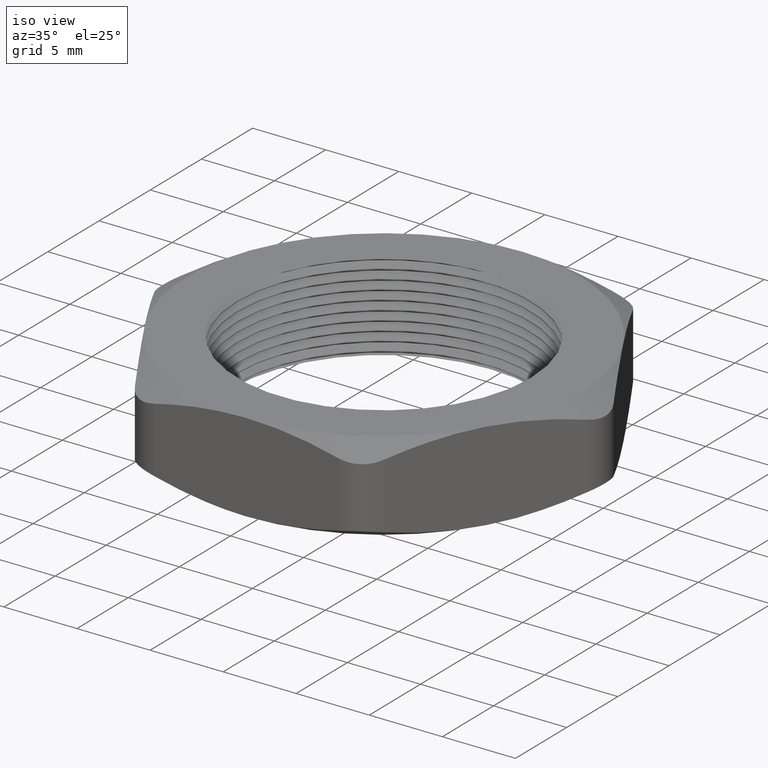
[diagram: clean part render]
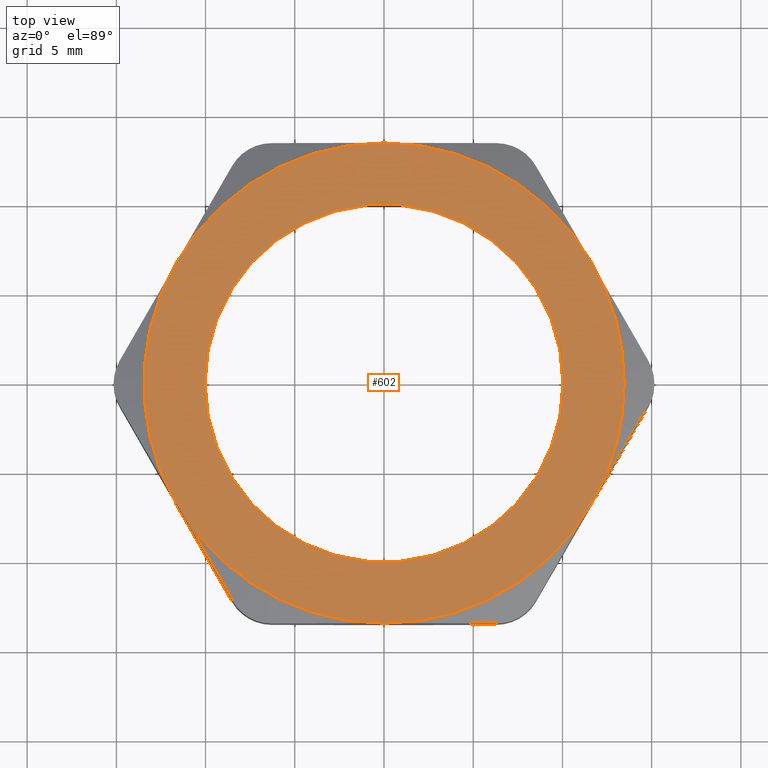
[diagram: tour spotlight — one face highlighted and labeled with its STEP entity id]
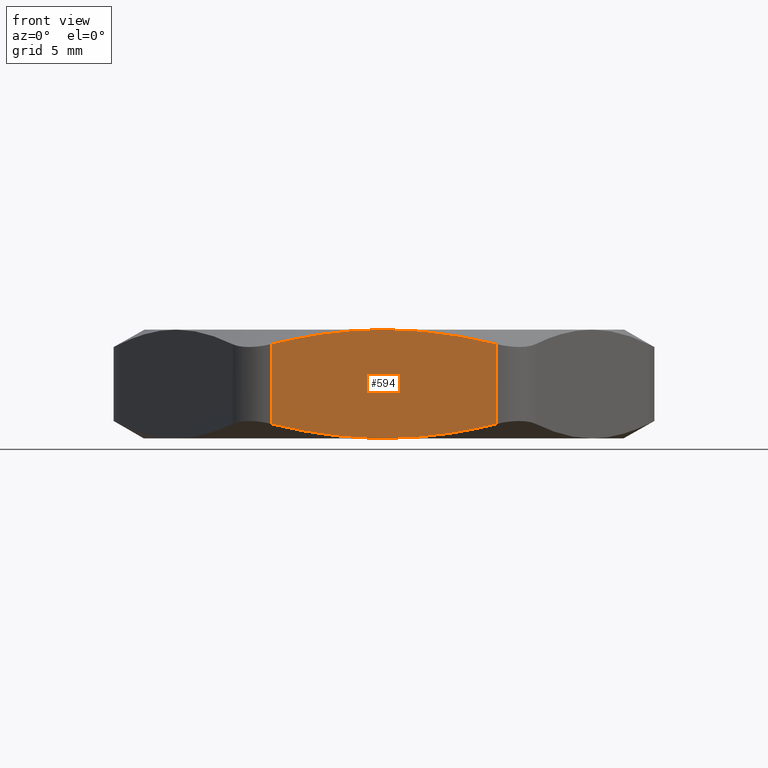
[diagram: tour spotlight — one face highlighted and labeled with its STEP entity id]
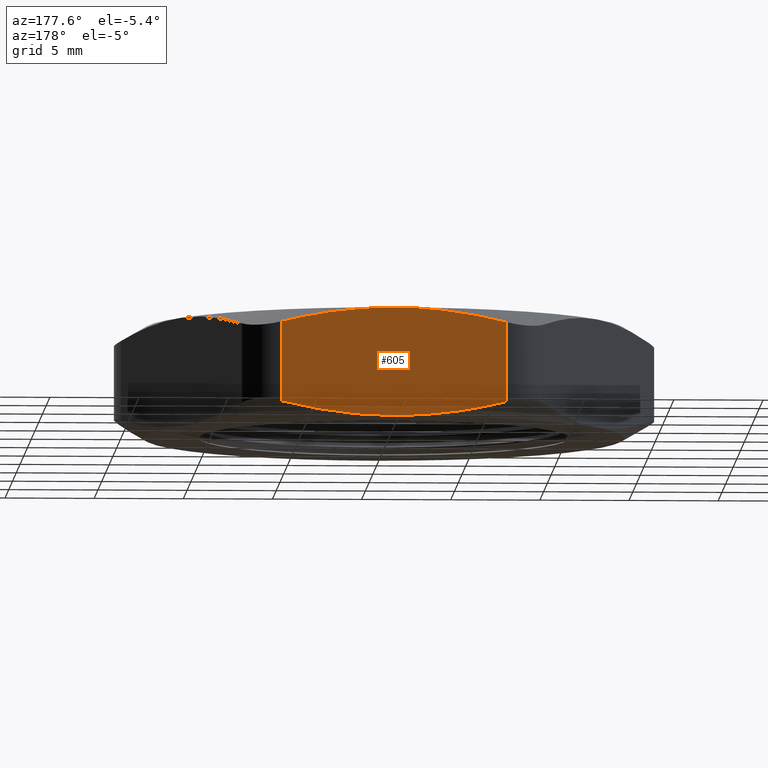
[diagram: tour spotlight — one face highlighted and labeled with its STEP entity id]
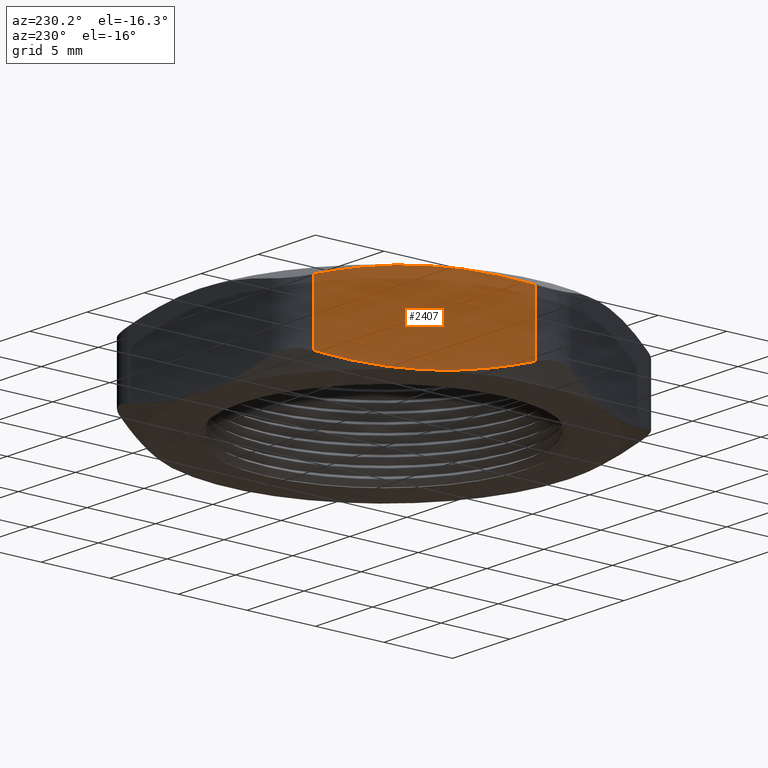
[diagram: tour spotlight — one face highlighted and labeled with its STEP entity id]
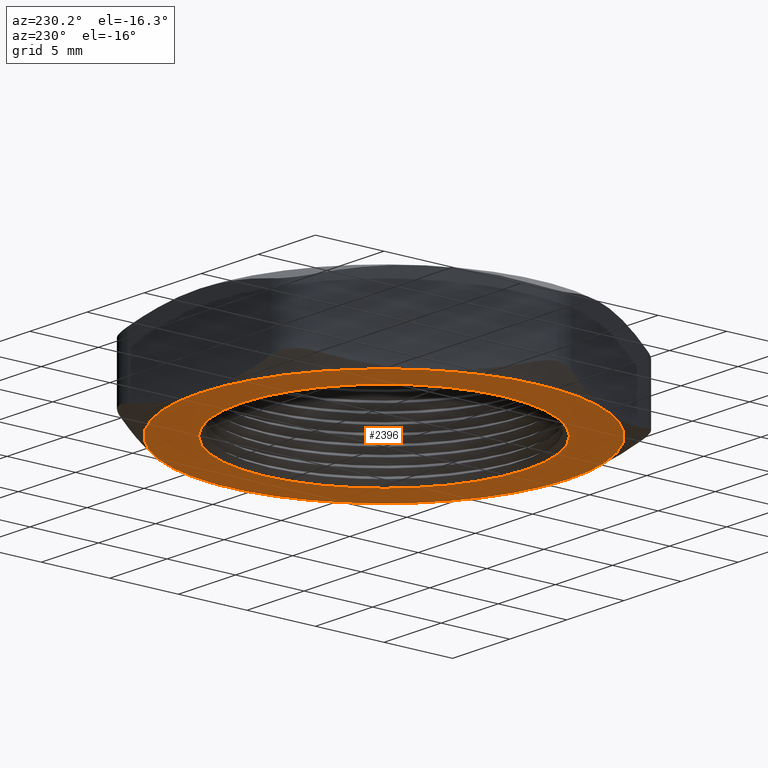
[diagram: tour spotlight — one face highlighted and labeled with its STEP entity id]
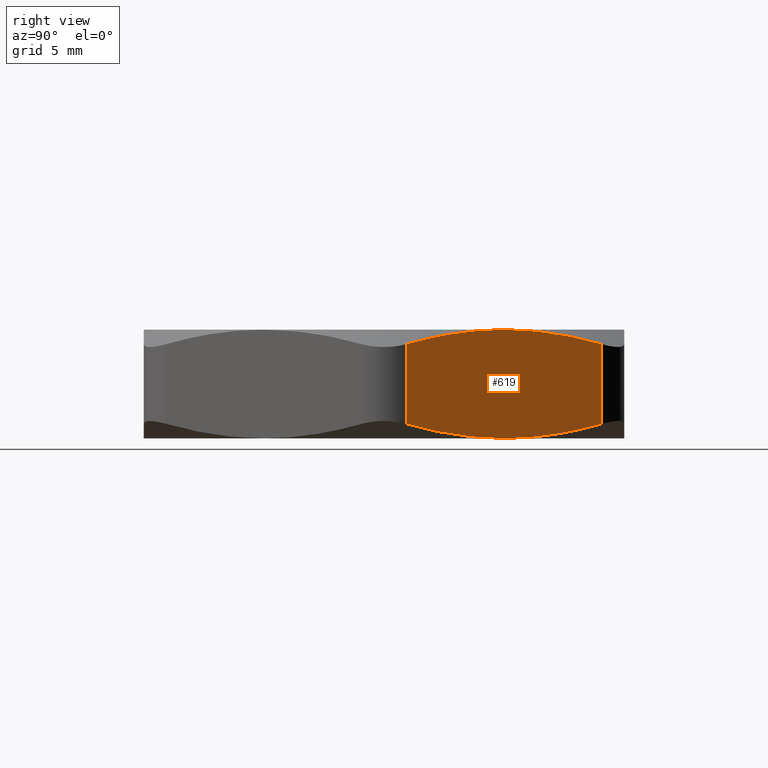
[diagram: tour spotlight — one face highlighted and labeled with its STEP entity id]
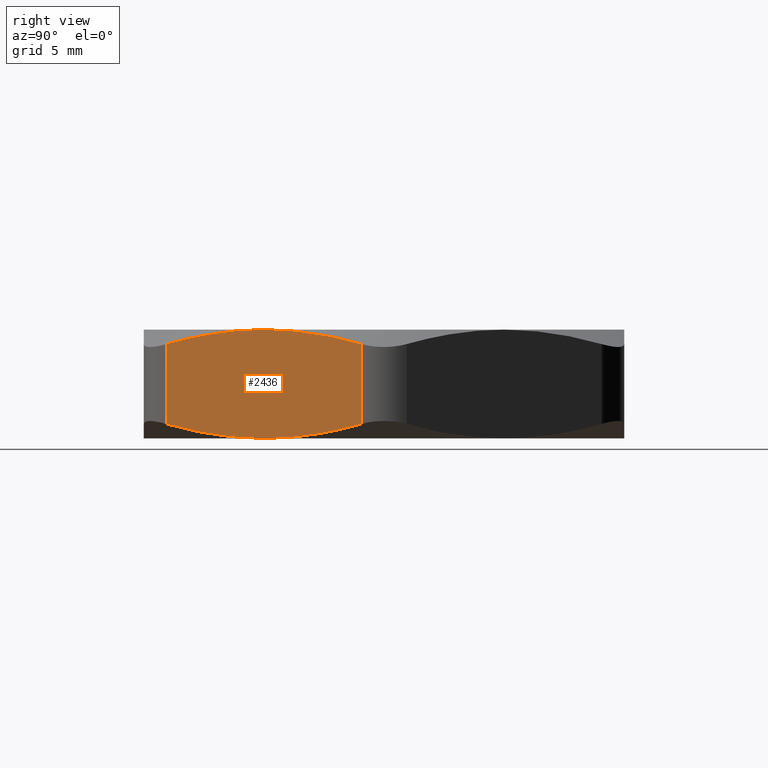
[diagram: tour spotlight — one face highlighted and labeled with its STEP entity id]
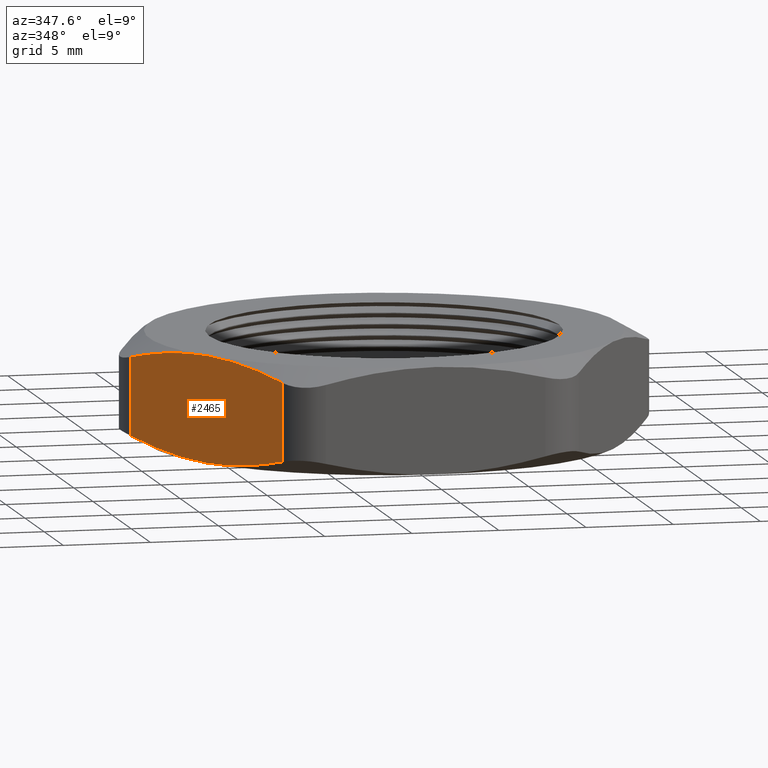
[diagram: tour spotlight — one face highlighted and labeled with its STEP entity id]
A machine part: a face-by-face anatomy tour. The part has 87 B-rep faces; the first image is the clean iso view, then the 8 largest visible faces are spotlighted one at a time (largest first), each with its STEP entity span.

Face 1 — top view, entity #602. In plain terms, the highlighted planar face has unit normal (0, 0, 1).
Definition (entity closure, byte-faithful):
#66 = DIRECTION ( 'NONE',  ( 1.000000000000000000, 0.0000000000000000000, 0.0000000000000000000 ) ) ;
#67 = DIRECTION ( 'NONE',  ( 0.0000000000000000000, 0.0000000000000000000, 1.000000000000000000 ) ) ;
#68 = CARTESIAN_POINT ( 'NONE',  ( 0.0000000000000000000, 0.0000000000000000000, 0.2399999999999999900 ) ) ;
#69 = AXIS2_PLACEMENT_3D ( 'NONE', #68, #67, #66 ) ;
#70 = CIRCLE ( 'NONE', #69, 0.5300000000000001400 ) ;
#126 = CARTESIAN_POINT ( 'NONE',  ( 0.4589934640057527500, 0.2650000000000001200, 0.2399999999999999900 ) ) ;
#127 = CARTESIAN_POINT ( 'NONE',  ( 0.5300000000000001400, 0.0000000000000000000, 0.2399999999999999900 ) ) ;
#307 = CARTESIAN_POINT ( 'NONE',  ( -0.4589934640057524700, 0.2650000000000001200, 0.2399999999999999900 ) ) ;
#459 = CARTESIAN_POINT ( 'NONE',  ( 0.4589934640057524700, -0.2649999999999999600, 0.2399999999999999900 ) ) ;
#598 = VERTEX_POINT ( 'NONE', #627 ) ;
#602 = ADVANCED_FACE ( 'NONE', ( #630, #629 ), #626, .T. ) ;
#626 = PLANE ( 'NONE',  #696 ) ;
#627 = CARTESIAN_POINT ( 'NONE',  ( -0.4589934640057524700, -0.2649999999999998500, 0.2399999999999999900 ) ) ;
#629 = FACE_OUTER_BOUND ( 'NONE', #1886, .T. ) ;
#630 = FACE_BOUND ( 'NONE', #666, .T. ) ;
#665 = ORIENTED_EDGE ( 'NONE', *, *, #2086, .F. ) ;
#666 = EDGE_LOOP ( 'NONE', ( #665, #1887 ) ) ;
#693 = DIRECTION ( 'NONE',  ( 1.000000000000000000, 0.0000000000000000000, 0.0000000000000000000 ) ) ;
#694 = DIRECTION ( 'NONE',  ( 0.0000000000000000000, 0.0000000000000000000, 1.000000000000000000 ) ) ;
#695 = CARTESIAN_POINT ( 'NONE',  ( -0.6119912853410033300, 1.794447934970291600E-016, 0.2399999999999999900 ) ) ;
#696 = AXIS2_PLACEMENT_3D ( 'NONE', #695, #694, #693 ) ;
#805 = CARTESIAN_POINT ( 'NONE',  ( 5.914624404477003900E-017, -0.5299999999999999200, 0.2399999999999999900 ) ) ;
#842 = DIRECTION ( 'NONE',  ( 1.000000000000000000, 0.0000000000000000000, 0.0000000000000000000 ) ) ;
#843 = DIRECTION ( 'NONE',  ( 0.0000000000000000000, 0.0000000000000000000, 1.000000000000000000 ) ) ;
#844 = CARTESIAN_POINT ( 'NONE',  ( 0.0000000000000000000, 0.0000000000000000000, 0.2399999999999999900 ) ) ;
#845 = AXIS2_PLACEMENT_3D ( 'NONE', #844, #843, #842 ) ;
#847 = CIRCLE ( 'NONE', #845, 0.5300000000000001400 ) ;
#868 = CIRCLE ( 'NONE', #900, 0.5300000000000001400 ) ;
#882 = DIRECTION ( 'NONE',  ( 1.000000000000000000, 0.0000000000000000000, 0.0000000000000000000 ) ) ;
#883 = DIRECTION ( 'NONE',  ( 0.0000000000000000000, 0.0000000000000000000, 1.000000000000000000 ) ) ;
#884 = CARTESIAN_POINT ( 'NONE',  ( 0.0000000000000000000, 0.0000000000000000000, 0.2399999999999999900 ) ) ;
#885 = AXIS2_PLACEMENT_3D ( 'NONE', #884, #883, #882 ) ;
#886 = CIRCLE ( 'NONE', #885, 0.5300000000000001400 ) ;
#887 = DIRECTION ( 'NONE',  ( 1.000000000000000000, 0.0000000000000000000, 0.0000000000000000000 ) ) ;
#888 = DIRECTION ( 'NONE',  ( 0.0000000000000000000, 0.0000000000000000000, 1.000000000000000000 ) ) ;
#889 = CARTESIAN_POINT ( 'NONE',  ( 0.0000000000000000000, 0.0000000000000000000, 0.2399999999999999900 ) ) ;
#890 = AXIS2_PLACEMENT_3D ( 'NONE', #889, #888, #887 ) ;
#891 = CIRCLE ( 'NONE', #890, 0.5300000000000001400 ) ;
#892 = DIRECTION ( 'NONE',  ( 1.000000000000000000, 0.0000000000000000000, 0.0000000000000000000 ) ) ;
#893 = DIRECTION ( 'NONE',  ( 0.0000000000000000000, 0.0000000000000000000, 1.000000000000000000 ) ) ;
#894 = CARTESIAN_POINT ( 'NONE',  ( 0.0000000000000000000, 0.0000000000000000000, 0.2399999999999999900 ) ) ;
#895 = AXIS2_PLACEMENT_3D ( 'NONE', #894, #893, #892 ) ;
#896 = CIRCLE ( 'NONE', #895, 0.5300000000000001400 ) ;
#897 = DIRECTION ( 'NONE',  ( 1.000000000000000000, 0.0000000000000000000, 0.0000000000000000000 ) ) ;
#898 = DIRECTION ( 'NONE',  ( 0.0000000000000000000, 0.0000000000000000000, 1.000000000000000000 ) ) ;
#899 = CARTESIAN_POINT ( 'NONE',  ( 0.0000000000000000000, 0.0000000000000000000, 0.2399999999999999900 ) ) ;
#900 = AXIS2_PLACEMENT_3D ( 'NONE', #899, #898, #897 ) ;
#915 = CARTESIAN_POINT ( 'NONE',  ( 0.0000000000000000000, 0.0000000000000000000, 0.2399999999999999900 ) ) ;
#916 = AXIS2_PLACEMENT_3D ( 'NONE', #915, #987, #986 ) ;
#937 = CIRCLE ( 'NONE', #916, 0.5300000000000001400 ) ;
#948 = CARTESIAN_POINT ( 'NONE',  ( 0.0000000000000000000, 0.5300000000000001400, 0.2399999999999999900 ) ) ;
#986 = DIRECTION ( 'NONE',  ( 1.000000000000000000, 0.0000000000000000000, 0.0000000000000000000 ) ) ;
#987 = DIRECTION ( 'NONE',  ( 0.0000000000000000000, 0.0000000000000000000, 1.000000000000000000 ) ) ;
#1074 = DIRECTION ( 'NONE',  ( 1.000000000000000000, 0.0000000000000000000, 0.0000000000000000000 ) ) ;
#1075 = DIRECTION ( 'NONE',  ( 0.0000000000000000000, 0.0000000000000000000, 1.000000000000000000 ) ) ;
#1076 = AXIS2_PLACEMENT_3D ( 'NONE', #1081, #1075, #1074 ) ;
#1077 = CIRCLE ( 'NONE', #1076, 0.3950000000000000200 ) ;
#1081 = CARTESIAN_POINT ( 'NONE',  ( 0.0000000000000000000, 0.0000000000000000000, 0.2399999999999999900 ) ) ;
#1421 = DIRECTION ( 'NONE',  ( 1.000000000000000000, 0.0000000000000000000, 0.0000000000000000000 ) ) ;
#1422 = DIRECTION ( 'NONE',  ( 0.0000000000000000000, 0.0000000000000000000, 1.000000000000000000 ) ) ;
#1423 = AXIS2_PLACEMENT_3D ( 'NONE', #1430, #1422, #1421 ) ;
#1424 = CIRCLE ( 'NONE', #1423, 0.3950000000000000200 ) ;
#1425 = CARTESIAN_POINT ( 'NONE',  ( -0.3950000000000000200, 0.0000000000000000000, 0.2399999999999999900 ) ) ;
#1430 = CARTESIAN_POINT ( 'NONE',  ( 0.0000000000000000000, 0.0000000000000000000, 0.2399999999999999900 ) ) ;
#1510 = CARTESIAN_POINT ( 'NONE',  ( 0.3950000000000000200, 4.959819536546780600E-017, 0.2399999999999999900 ) ) ;
#1669 = VERTEX_POINT ( 'NONE', #805 ) ;
#1786 = ORIENTED_EDGE ( 'NONE', *, *, #1832, .T. ) ;
#1787 = EDGE_CURVE ( 'NONE', #1804, #2382, #868, .T. ) ;
#1788 = ORIENTED_EDGE ( 'NONE', *, *, #1787, .T. ) ;
#1789 = ORIENTED_EDGE ( 'NONE', *, *, #2276, .T. ) ;
#1790 = ORIENTED_EDGE ( 'NONE', *, *, #1791, .T. ) ;
#1791 = EDGE_CURVE ( 'NONE', #2382, #598, #896, .T. ) ;
#1792 = ORIENTED_EDGE ( 'NONE', *, *, #1813, .T. ) ;
#1793 = ORIENTED_EDGE ( 'NONE', *, *, #1794, .T. ) ;
#1794 = EDGE_CURVE ( 'NONE', #2278, #1804, #891, .T. ) ;
#1795 = ORIENTED_EDGE ( 'NONE', *, *, #1796, .T. ) ;
#1796 = EDGE_CURVE ( 'NONE', #2457, #2277, #886, .T. ) ;
#1804 = VERTEX_POINT ( 'NONE', #948 ) ;
#1813 = EDGE_CURVE ( 'NONE', #598, #1669, #937, .T. ) ;
#1832 = EDGE_CURVE ( 'NONE', #1669, #2457, #847, .T. ) ;
#1885 = EDGE_CURVE ( 'NONE', #2088, #2087, #1077, .T. ) ;
#1886 = EDGE_LOOP ( 'NONE', ( #1795, #1789, #1793, #1788, #1790, #1792, #1786 ) ) ;
#1887 = ORIENTED_EDGE ( 'NONE', *, *, #1885, .F. ) ;
#2086 = EDGE_CURVE ( 'NONE', #2087, #2088, #1424, .T. ) ;
#2087 = VERTEX_POINT ( 'NONE', #1425 ) ;
#2088 = VERTEX_POINT ( 'NONE', #1510 ) ;
#2276 = EDGE_CURVE ( 'NONE', #2277, #2278, #70, .T. ) ;
#2277 = VERTEX_POINT ( 'NONE', #127 ) ;
#2278 = VERTEX_POINT ( 'NONE', #126 ) ;
#2382 = VERTEX_POINT ( 'NONE', #307 ) ;
#2457 = VERTEX_POINT ( 'NONE', #459 ) ;

Face 2 — front view, entity #594. In plain terms, the highlighted planar face has unit normal (-0, 1, 0).
Definition (entity closure, byte-faithful):
#253 = CARTESIAN_POINT ( 'NONE',  ( 5.914624404477006300E-017, -0.5300000000000001400, 0.0000000000000000000 ) ) ;
#415 = CARTESIAN_POINT ( 'NONE',  ( 0.2482606157515391000, -0.5299999999999999200, 0.2080936187378569500 ) ) ;
#416 = DIRECTION ( 'NONE',  ( 0.0000000000000000000, 0.0000000000000000000, 1.000000000000000000 ) ) ;
#417 = VECTOR ( 'NONE', #416, 39.37007874015748100 ) ;
#418 = CARTESIAN_POINT ( 'NONE',  ( 0.2482606157515390400, -0.5299999999999999200, 0.2399999999999999900 ) ) ;
#419 = LINE ( 'NONE', #418, #417 ) ;
#581 = EDGE_LOOP ( 'NONE', ( #589, #2445, #582, #1670, #1673, #1676 ) ) ;
#582 = ORIENTED_EDGE ( 'NONE', *, *, #583, .F. ) ;
#583 = EDGE_CURVE ( 'NONE', #1669, #2447, #670, .T. ) ;
#587 = VERTEX_POINT ( 'NONE', #688 ) ;
#589 = ORIENTED_EDGE ( 'NONE', *, *, #590, .F. ) ;
#590 = EDGE_CURVE ( 'NONE', #587, #2340, #678, .T. ) ;
#594 = ADVANCED_FACE ( 'NONE', ( #652 ), #649, .F. ) ;
#638 = DIRECTION ( 'NONE',  ( -1.000000000000000000, -1.115966868769246100E-016, 0.0000000000000000000 ) ) ;
#639 = DIRECTION ( 'NONE',  ( -1.115966868769246100E-016, 1.000000000000000000, 0.0000000000000000000 ) ) ;
#648 = CARTESIAN_POINT ( 'NONE',  ( -0.3059956426705017200, -0.5299999999999999200, 0.2399999999999999900 ) ) ;
#649 = PLANE ( 'NONE',  #651 ) ;
#651 = AXIS2_PLACEMENT_3D ( 'NONE', #648, #639, #638 ) ;
#652 = FACE_OUTER_BOUND ( 'NONE', #581, .T. ) ;
#655 = CARTESIAN_POINT ( 'NONE',  ( 5.914624404477006300E-017, -0.5300000000000001400, 0.0000000000000000000 ) ) ;
#656 = CARTESIAN_POINT ( 'NONE',  ( 0.2482606157515391000, -0.5299999999999999200, 0.2080936187378569500 ) ) ;
#657 = CARTESIAN_POINT ( 'NONE',  ( 0.2079115416018110200, -0.5299999999999999200, 0.2179752661621930400 ) ) ;
#658 = CARTESIAN_POINT ( 'NONE',  ( 0.1670878377893605700, -0.5299999999999998000, 0.2260005700022819600 ) ) ;
#659 = CARTESIAN_POINT ( 'NONE',  ( 0.08415995573735118900, -0.5300000000000001400, 0.2370430615147484100 ) ) ;
#660 = CARTESIAN_POINT ( 'NONE',  ( 0.04181844681592630800, -0.5299999999999996900, 0.2400000000000000500 ) ) ;
#661 = CARTESIAN_POINT ( 'NONE',  ( 5.914624404477003900E-017, -0.5299999999999999200, 0.2399999999999999900 ) ) ;
#670 = B_SPLINE_CURVE_WITH_KNOTS ( 'NONE', 3,
 ( #661, #660, #659, #658, #657, #656 ),
 .UNSPECIFIED., .F., .F.,
 ( 4, 2, 4 ),
 ( 0.02249947210936996400, 0.02567613831319895700, 0.02885280451702795100 ),
 .UNSPECIFIED. ) ;
#671 = CARTESIAN_POINT ( 'NONE',  ( 0.04181844681592619700, -0.5299999999999999200, -1.089804595128761200E-016 ) ) ;
#672 = CARTESIAN_POINT ( 'NONE',  ( 0.08415995573735093900, -0.5299999999999996900, 0.002956938485251531800 ) ) ;
#673 = CARTESIAN_POINT ( 'NONE',  ( 0.1670878377893603700, -0.5300000000000000300, 0.01399942999771792100 ) ) ;
#674 = CARTESIAN_POINT ( 'NONE',  ( 0.2079115416018109100, -0.5299999999999996900, 0.02202473383780690800 ) ) ;
#675 = CARTESIAN_POINT ( 'NONE',  ( 0.2482606157515391300, -0.5299999999999999200, 0.03190638126214305500 ) ) ;
#678 = B_SPLINE_CURVE_WITH_KNOTS ( 'NONE', 3,
 ( #675, #674, #673, #672, #671, #655 ),
 .UNSPECIFIED., .F., .F.,
 ( 4, 2, 4 ),
 ( 0.04003326255042875800, 0.04320879711015816700, 0.04638433166988757000 ),
 .UNSPECIFIED. ) ;
#688 = CARTESIAN_POINT ( 'NONE',  ( 0.2482606157515391300, -0.5299999999999999200, 0.03190638126214305500 ) ) ;
#700 = DIRECTION ( 'NONE',  ( 0.0000000000000000000, 0.0000000000000000000, -1.000000000000000000 ) ) ;
#701 = VECTOR ( 'NONE', #700, 39.37007874015748100 ) ;
#702 = CARTESIAN_POINT ( 'NONE',  ( -0.2482606157515391300, -0.5299999999999999200, 0.2399999999999999900 ) ) ;
#703 = LINE ( 'NONE', #702, #701 ) ;
#704 = CARTESIAN_POINT ( 'NONE',  ( 5.914624404477003900E-017, -0.5299999999999999200, 0.2399999999999999900 ) ) ;
#705 = CARTESIAN_POINT ( 'NONE',  ( -0.04187923721987532600, -0.5299999999999999200, 0.2400000000000001000 ) ) ;
#706 = CARTESIAN_POINT ( 'NONE',  ( -0.08348449454538828300, -0.5299999999999999200, 0.2371004096376487800 ) ) ;
#707 = CARTESIAN_POINT ( 'NONE',  ( -0.1662082438501323600, -0.5300000000000000300, 0.2261496826285322700 ) ) ;
#708 = CARTESIAN_POINT ( 'NONE',  ( -0.2073285774609583400, -0.5299999999999998000, 0.2181180363799075400 ) ) ;
#709 = CARTESIAN_POINT ( 'NONE',  ( -0.2482606157515391000, -0.5299999999999999200, 0.2080936187378568900 ) ) ;
#712 = CARTESIAN_POINT ( 'NONE',  ( -0.2482606157515391000, -0.5299999999999999200, 0.2080936187378568900 ) ) ;
#713 = B_SPLINE_CURVE_WITH_KNOTS ( 'NONE', 3,
 ( #709, #708, #707, #706, #705, #704 ),
 .UNSPECIFIED., .F., .F.,
 ( 4, 2, 4 ),
 ( 0.01613690402528469500, 0.01931818806732733100, 0.02249947210936996400 ),
 .UNSPECIFIED. ) ;
#728 = CARTESIAN_POINT ( 'NONE',  ( -0.2482606157515391500, -0.5299999999999999200, 0.03190638126214308300 ) ) ;
#729 = CARTESIAN_POINT ( 'NONE',  ( -0.2073285774609583100, -0.5299999999999999200, 0.02188196362009240200 ) ) ;
#730 = CARTESIAN_POINT ( 'NONE',  ( -0.1662082438501324700, -0.5299999999999999200, 0.01385031737146783000 ) ) ;
#756 = CARTESIAN_POINT ( 'NONE',  ( -0.08348449454538854600, -0.5300000000000000300, 0.002899590362351215500 ) ) ;
#757 = CARTESIAN_POINT ( 'NONE',  ( -0.04187923721987540200, -0.5299999999999998000, -8.763789706237404000E-017 ) ) ;
#758 = CARTESIAN_POINT ( 'NONE',  ( 5.914624404477006300E-017, -0.5300000000000001400, 0.0000000000000000000 ) ) ;
#763 = B_SPLINE_CURVE_WITH_KNOTS ( 'NONE', 3,
 ( #758, #757, #756, #730, #729, #728 ),
 .UNSPECIFIED., .F., .F.,
 ( 4, 2, 4 ),
 ( 0.04638433166988757000, 0.04956448242278860300, 0.05274463317568962900 ),
 .UNSPECIFIED. ) ;
#764 = CARTESIAN_POINT ( 'NONE',  ( -0.2482606157515391500, -0.5299999999999999200, 0.03190638126214308300 ) ) ;
#805 = CARTESIAN_POINT ( 'NONE',  ( 5.914624404477003900E-017, -0.5299999999999999200, 0.2399999999999999900 ) ) ;
#1669 = VERTEX_POINT ( 'NONE', #805 ) ;
#1670 = ORIENTED_EDGE ( 'NONE', *, *, #1671, .F. ) ;
#1671 = EDGE_CURVE ( 'NONE', #1672, #1669, #713, .T. ) ;
#1672 = VERTEX_POINT ( 'NONE', #712 ) ;
#1673 = ORIENTED_EDGE ( 'NONE', *, *, #1674, .T. ) ;
#1674 = EDGE_CURVE ( 'NONE', #1672, #1675, #703, .T. ) ;
#1675 = VERTEX_POINT ( 'NONE', #764 ) ;
#1676 = ORIENTED_EDGE ( 'NONE', *, *, #1677, .F. ) ;
#1677 = EDGE_CURVE ( 'NONE', #2340, #1675, #763, .T. ) ;
#2340 = VERTEX_POINT ( 'NONE', #253 ) ;
#2445 = ORIENTED_EDGE ( 'NONE', *, *, #2446, .T. ) ;
#2446 = EDGE_CURVE ( 'NONE', #587, #2447, #419, .T. ) ;
#2447 = VERTEX_POINT ( 'NONE', #415 ) ;

Face 3 — auxiliary view, entity #605. In plain terms, the highlighted planar face has unit normal (0, -1, 0).
Definition (entity closure, byte-faithful):
#265 = CARTESIAN_POINT ( 'NONE',  ( 0.0000000000000000000, 0.5299999999999999200, 0.0000000000000000000 ) ) ;
#603 = EDGE_CURVE ( 'NONE', #2370, #662, #812, .T. ) ;
#604 = ORIENTED_EDGE ( 'NONE', *, *, #603, .F. ) ;
#605 = ADVANCED_FACE ( 'NONE', ( #731 ), #767, .F. ) ;
#606 = EDGE_LOOP ( 'NONE', ( #1884, #664, #1803, #1801, #1798, #604 ) ) ;
#662 = VERTEX_POINT ( 'NONE', #734 ) ;
#663 = EDGE_CURVE ( 'NONE', #1800, #662, #738, .T. ) ;
#664 = ORIENTED_EDGE ( 'NONE', *, *, #1806, .T. ) ;
#667 = EDGE_CURVE ( 'NONE', #668, #2370, #807, .T. ) ;
#668 = VERTEX_POINT ( 'NONE', #806 ) ;
#710 = CARTESIAN_POINT ( 'NONE',  ( 0.1670878377904243500, 0.5299999999999999200, 0.01399942999800620400 ) ) ;
#711 = CARTESIAN_POINT ( 'NONE',  ( 0.08415995574332815800, 0.5300000000000002500, 0.002956938485901045200 ) ) ;
#714 = CARTESIAN_POINT ( 'NONE',  ( 0.0000000000000000000, 0.5299999999999999200, 0.0000000000000000000 ) ) ;
#715 = CARTESIAN_POINT ( 'NONE',  ( -0.04187923722122002100, 0.5300000000000001400, -1.333910153156378100E-018 ) ) ;
#716 = CARTESIAN_POINT ( 'NONE',  ( -0.08348449454732771700, 0.5300000000000001400, 0.002899590362529353000 ) ) ;
#717 = CARTESIAN_POINT ( 'NONE',  ( -0.1662082438519783500, 0.5300000000000001400, 0.01385031737179087700 ) ) ;
#718 = CARTESIAN_POINT ( 'NONE',  ( -0.2073285774621215500, 0.5299999999999999200, 0.02188196362037735400 ) ) ;
#731 = FACE_OUTER_BOUND ( 'NONE', #606, .T. ) ;
#734 = CARTESIAN_POINT ( 'NONE',  ( 0.2482606157515394000, 0.5300000000000001400, 0.03190638126214320700 ) ) ;
#735 = DIRECTION ( 'NONE',  ( 0.0000000000000000000, 0.0000000000000000000, -1.000000000000000000 ) ) ;
#736 = VECTOR ( 'NONE', #735, 39.37007874015748100 ) ;
#737 = CARTESIAN_POINT ( 'NONE',  ( 0.2482606157515393200, 0.5300000000000001400, 0.2399999999999999900 ) ) ;
#738 = LINE ( 'NONE', #737, #736 ) ;
#749 = CARTESIAN_POINT ( 'NONE',  ( 0.04181844682058782900, 0.5300000000000001400, 1.200519137840740800E-018 ) ) ;
#765 = CARTESIAN_POINT ( 'NONE',  ( 0.3059956426705020000, 0.5300000000000001400, 0.2399999999999999900 ) ) ;
#766 = AXIS2_PLACEMENT_3D ( 'NONE', #765, #811, #810 ) ;
#767 = PLANE ( 'NONE',  #766 ) ;
#768 = CARTESIAN_POINT ( 'NONE',  ( 0.0000000000000000000, 0.5299999999999999200, 0.0000000000000000000 ) ) ;
#769 = CARTESIAN_POINT ( 'NONE',  ( 0.2482606157515394000, 0.5300000000000001400, 0.03190638126214320700 ) ) ;
#770 = CARTESIAN_POINT ( 'NONE',  ( 0.2079115416018541300, 0.5300000000000001400, 0.02202473383781758400 ) ) ;
#804 = CARTESIAN_POINT ( 'NONE',  ( -0.2482606157515389600, 0.5300000000000001400, 0.03190638126214309000 ) ) ;
#806 = CARTESIAN_POINT ( 'NONE',  ( -0.2482606157515389600, 0.5300000000000001400, 0.03190638126214309000 ) ) ;
#807 = B_SPLINE_CURVE_WITH_KNOTS ( 'NONE', 3,
 ( #804, #718, #717, #716, #715, #714 ),
 .UNSPECIFIED., .F., .F.,
 ( 4, 2, 4 ),
 ( 0.01613690399679807200, 0.01931818803873044900, 0.02249947208066282700 ),
 .UNSPECIFIED. ) ;
#810 = DIRECTION ( 'NONE',  ( 0.0000000000000000000, 0.0000000000000000000, -1.000000000000000000 ) ) ;
#811 = DIRECTION ( 'NONE',  ( 0.0000000000000000000, -1.000000000000000000, 0.0000000000000000000 ) ) ;
#812 = B_SPLINE_CURVE_WITH_KNOTS ( 'NONE', 3,
 ( #768, #749, #711, #710, #770, #769 ),
 .UNSPECIFIED., .F., .F.,
 ( 4, 2, 4 ),
 ( 0.02249947208066282700, 0.02567613828463381800, 0.02885280448860480900 ),
 .UNSPECIFIED. ) ;
#880 = B_SPLINE_CURVE_WITH_KNOTS ( 'NONE', 3,
 ( #956, #955, #954, #953, #952, #951 ),
 .UNSPECIFIED., .F., .F.,
 ( 4, 2, 4 ),
 ( 0.04003326252540463600, 0.04320879708514141500, 0.04638433164487818600 ),
 .UNSPECIFIED. ) ;
#881 = CARTESIAN_POINT ( 'NONE',  ( 0.2482606157515392700, 0.5300000000000001400, 0.2080936187378568400 ) ) ;
#938 = DIRECTION ( 'NONE',  ( 0.0000000000000000000, 0.0000000000000000000, 1.000000000000000000 ) ) ;
#939 = VECTOR ( 'NONE', #938, 39.37007874015748100 ) ;
#940 = CARTESIAN_POINT ( 'NONE',  ( -0.2482606157515389000, 0.5300000000000001400, 0.2399999999999999900 ) ) ;
#941 = LINE ( 'NONE', #940, #939 ) ;
#942 = CARTESIAN_POINT ( 'NONE',  ( -0.2482606157515389900, 0.5300000000000001400, 0.2080936187378568900 ) ) ;
#943 = CARTESIAN_POINT ( 'NONE',  ( -0.2073285774621212700, 0.5300000000000001400, 0.2181180363796227100 ) ) ;
#944 = CARTESIAN_POINT ( 'NONE',  ( -0.1662082438519780200, 0.5300000000000001400, 0.2261496826282091400 ) ) ;
#945 = CARTESIAN_POINT ( 'NONE',  ( -0.08348449454732753700, 0.5300000000000001400, 0.2371004096374707000 ) ) ;
#946 = CARTESIAN_POINT ( 'NONE',  ( -0.04187923722122002800, 0.5299999999999999200, 0.2399999999999999600 ) ) ;
#947 = CARTESIAN_POINT ( 'NONE',  ( 0.0000000000000000000, 0.5300000000000001400, 0.2399999999999999900 ) ) ;
#948 = CARTESIAN_POINT ( 'NONE',  ( 0.0000000000000000000, 0.5300000000000001400, 0.2399999999999999900 ) ) ;
#949 = B_SPLINE_CURVE_WITH_KNOTS ( 'NONE', 3,
 ( #947, #946, #945, #944, #943, #942 ),
 .UNSPECIFIED., .F., .F.,
 ( 4, 2, 4 ),
 ( 0.04638433164487818600, 0.04956448239753422100, 0.05274463315019026200 ),
 .UNSPECIFIED. ) ;
#950 = CARTESIAN_POINT ( 'NONE',  ( -0.2482606157515389900, 0.5300000000000001400, 0.2080936187378568900 ) ) ;
#951 = CARTESIAN_POINT ( 'NONE',  ( 0.0000000000000000000, 0.5300000000000001400, 0.2399999999999999900 ) ) ;
#952 = CARTESIAN_POINT ( 'NONE',  ( 0.04181844682058775300, 0.5300000000000001400, 0.2400000000000000500 ) ) ;
#953 = CARTESIAN_POINT ( 'NONE',  ( 0.08415995574332781100, 0.5300000000000001400, 0.2370430615140989800 ) ) ;
#954 = CARTESIAN_POINT ( 'NONE',  ( 0.1670878377904240500, 0.5300000000000001400, 0.2260005700019939200 ) ) ;
#955 = CARTESIAN_POINT ( 'NONE',  ( 0.2079115416018539100, 0.5299999999999999200, 0.2179752661621824100 ) ) ;
#956 = CARTESIAN_POINT ( 'NONE',  ( 0.2482606157515392700, 0.5300000000000001400, 0.2080936187378568400 ) ) ;
#1798 = ORIENTED_EDGE ( 'NONE', *, *, #663, .T. ) ;
#1799 = EDGE_CURVE ( 'NONE', #1800, #1804, #880, .T. ) ;
#1800 = VERTEX_POINT ( 'NONE', #881 ) ;
#1801 = ORIENTED_EDGE ( 'NONE', *, *, #1799, .F. ) ;
#1802 = EDGE_CURVE ( 'NONE', #1804, #1805, #949, .T. ) ;
#1803 = ORIENTED_EDGE ( 'NONE', *, *, #1802, .F. ) ;
#1804 = VERTEX_POINT ( 'NONE', #948 ) ;
#1805 = VERTEX_POINT ( 'NONE', #950 ) ;
#1806 = EDGE_CURVE ( 'NONE', #668, #1805, #941, .T. ) ;
#1884 = ORIENTED_EDGE ( 'NONE', *, *, #667, .F. ) ;
#2370 = VERTEX_POINT ( 'NONE', #265 ) ;

Face 4 — auxiliary view, entity #2407. In plain terms, the highlighted planar face has unit normal (0.866, -0.5, 0).
Definition (entity closure, byte-faithful):
#298 = CARTESIAN_POINT ( 'NONE',  ( -0.5831237718815219800, 0.05000000000000019000, 0.2080936187378568900 ) ) ;
#299 = CARTESIAN_POINT ( 'NONE',  ( -0.5628122693413815100, 0.08518055437758781400, 0.2180423529276612800 ) ) ;
#300 = CARTESIAN_POINT ( 'NONE',  ( -0.5423412265098264100, 0.1206374406457598100, 0.2260647668561307200 ) ) ;
#301 = CARTESIAN_POINT ( 'NONE',  ( -0.5113207380161618500, 0.1743665027923926900, 0.2343080058279307900 ) ) ;
#302 = CARTESIAN_POINT ( 'NONE',  ( -0.5009282709238903600, 0.1923667838121942100, 0.2364242204120070600 ) ) ;
#303 = CARTESIAN_POINT ( 'NONE',  ( -0.4800286126102080700, 0.2285660538723214000, 0.2392714483092691100 ) ) ;
#304 = CARTESIAN_POINT ( 'NONE',  ( -0.4694840780328564100, 0.2468297235024610200, 0.2400000000000003000 ) ) ;
#305 = CARTESIAN_POINT ( 'NONE',  ( -0.4589934640057524700, 0.2650000000000001200, 0.2399999999999999900 ) ) ;
#307 = CARTESIAN_POINT ( 'NONE',  ( -0.4589934640057524700, 0.2650000000000001200, 0.2399999999999999900 ) ) ;
#308 = B_SPLINE_CURVE_WITH_KNOTS ( 'NONE', 3,
 ( #305, #304, #303, #302, #301, #300, #299, #298 ),
 .UNSPECIFIED., .F., .F.,
 ( 4, 2, 2, 4 ),
 ( 0.007864521838742756900, 0.009447047830300868100, 0.01102957382185898100, 0.01419462580497520300 ),
 .UNSPECIFIED. ) ;
#310 = CARTESIAN_POINT ( 'NONE',  ( -0.5831237718815219800, 0.05000000000000019000, 0.2080936187378568900 ) ) ;
#311 = DIRECTION ( 'NONE',  ( 0.0000000000000000000, 0.0000000000000000000, 1.000000000000000000 ) ) ;
#312 = VECTOR ( 'NONE', #311, 39.37007874015748100 ) ;
#313 = CARTESIAN_POINT ( 'NONE',  ( -0.5831237718815220900, 0.05000000000000001000, 0.2399999999999999900 ) ) ;
#314 = LINE ( 'NONE', #313, #312 ) ;
#323 = FACE_OUTER_BOUND ( 'NONE', #2408, .T. ) ;
#351 = B_SPLINE_CURVE_WITH_KNOTS ( 'NONE', 3,
 ( #409, #408, #407, #406, #405, #404 ),
 .UNSPECIFIED., .F., .F.,
 ( 4, 2, 4 ),
 ( 0.001507538927942152900, 0.004686030383342454900, 0.007864521838742756900 ),
 .UNSPECIFIED. ) ;
#374 = DIRECTION ( 'NONE',  ( 0.5000000000000001100, 0.8660254037844384900, 0.0000000000000000000 ) ) ;
#375 = DIRECTION ( 'NONE',  ( 0.8660254037844386000, -0.5000000000000002200, 0.0000000000000000000 ) ) ;
#376 = CARTESIAN_POINT ( 'NONE',  ( -0.3059956426705015000, 0.5300000000000001400, 0.2399999999999999900 ) ) ;
#377 = AXIS2_PLACEMENT_3D ( 'NONE', #376, #375, #374 ) ;
#378 = PLANE ( 'NONE',  #377 ) ;
#387 = CARTESIAN_POINT ( 'NONE',  ( -0.3348631561299828000, 0.4800000000000001500, 0.03190638126214313800 ) ) ;
#388 = CARTESIAN_POINT ( 'NONE',  ( -0.3551746586701233200, 0.4448194456224126600, 0.02195764707233878500 ) ) ;
#389 = CARTESIAN_POINT ( 'NONE',  ( -0.3756457015016785300, 0.4093625593542405400, 0.01393523314386926900 ) ) ;
#390 = CARTESIAN_POINT ( 'NONE',  ( -0.4066661899953429900, 0.3556334972076077300, 0.005691994172069224900 ) ) ;
#391 = CARTESIAN_POINT ( 'NONE',  ( -0.4170586570876143600, 0.3376332161878060600, 0.003575779587992931500 ) ) ;
#392 = CARTESIAN_POINT ( 'NONE',  ( -0.4379583154012968200, 0.3014339461276789900, 0.0007285516907309376400 ) ) ;
#393 = CARTESIAN_POINT ( 'NONE',  ( -0.4485028499786483700, 0.2831702764975390600, -4.129785834172146500E-016 ) ) ;
#394 = CARTESIAN_POINT ( 'NONE',  ( -0.4589934640057524700, 0.2650000000000001200, 0.0000000000000000000 ) ) ;
#398 = B_SPLINE_CURVE_WITH_KNOTS ( 'NONE', 3,
 ( #394, #393, #392, #391, #390, #389, #388, #387 ),
 .UNSPECIFIED., .F., .F.,
 ( 4, 2, 2, 4 ),
 ( 0.007864521838742755100, 0.009447047830300868100, 0.01102957382185898100, 0.01419462580497520500 ),
 .UNSPECIFIED. ) ;
#399 = CARTESIAN_POINT ( 'NONE',  ( -0.3348631561299828000, 0.4800000000000001500, 0.03190638126214313800 ) ) ;
#400 = DIRECTION ( 'NONE',  ( 0.0000000000000000000, 0.0000000000000000000, -1.000000000000000000 ) ) ;
#401 = VECTOR ( 'NONE', #400, 39.37007874015748100 ) ;
#402 = CARTESIAN_POINT ( 'NONE',  ( -0.3348631561299828500, 0.4800000000000000900, 0.2399999999999999900 ) ) ;
#403 = LINE ( 'NONE', #402, #401 ) ;
#404 = CARTESIAN_POINT ( 'NONE',  ( -0.4589934640057524700, 0.2650000000000001200, 0.2399999999999999900 ) ) ;
#405 = CARTESIAN_POINT ( 'NONE',  ( -0.4379231452716992300, 0.3014948625790505000, 0.2400000000000003800 ) ) ;
#406 = CARTESIAN_POINT ( 'NONE',  ( -0.4170635657754352400, 0.3376247140911017300, 0.2370658434367601800 ) ) ;
#407 = CARTESIAN_POINT ( 'NONE',  ( -0.3757114353771500200, 0.4092487049421453200, 0.2260873317065831600 ) ) ;
#408 = CARTESIAN_POINT ( 'NONE',  ( -0.3552174247804041300, 0.4447453725465638800, 0.2180633001058758800 ) ) ;
#409 = CARTESIAN_POINT ( 'NONE',  ( -0.3348631561299828500, 0.4800000000000000900, 0.2080936187378568700 ) ) ;
#410 = CARTESIAN_POINT ( 'NONE',  ( -0.3348631561299828500, 0.4800000000000000900, 0.2080936187378568700 ) ) ;
#1490 = CARTESIAN_POINT ( 'NONE',  ( -0.5831237718815219800, 0.05000000000000013500, 0.03190638126214309000 ) ) ;
#1497 = CARTESIAN_POINT ( 'NONE',  ( -0.4589934640057524700, 0.2650000000000001200, 0.0000000000000000000 ) ) ;
#1578 = CARTESIAN_POINT ( 'NONE',  ( -0.4589934640057524700, 0.2650000000000001200, 0.0000000000000000000 ) ) ;
#1579 = CARTESIAN_POINT ( 'NONE',  ( -0.4800637827398055400, 0.2285051374209496100, -4.099105900649550800E-016 ) ) ;
#1580 = CARTESIAN_POINT ( 'NONE',  ( -0.5009233622360695900, 0.1923752859088983800, 0.002934156563239747600 ) ) ;
#1581 = CARTESIAN_POINT ( 'NONE',  ( -0.5422754926343549300, 0.1207512950578549800, 0.01391266829341687000 ) ) ;
#1582 = CARTESIAN_POINT ( 'NONE',  ( -0.5627695032311006400, 0.08525462745343627400, 0.02193669989412406300 ) ) ;
#1583 = CARTESIAN_POINT ( 'NONE',  ( -0.5831237718815219800, 0.05000000000000013500, 0.03190638126214309000 ) ) ;
#1588 = B_SPLINE_CURVE_WITH_KNOTS ( 'NONE', 3,
 ( #1583, #1582, #1581, #1580, #1579, #1578 ),
 .UNSPECIFIED., .F., .F.,
 ( 4, 2, 4 ),
 ( 0.001507538927942151600, 0.004686030383342454000, 0.007864521838742755100 ),
 .UNSPECIFIED. ) ;
#2100 = VERTEX_POINT ( 'NONE', #1497 ) ;
#2106 = VERTEX_POINT ( 'NONE', #1490 ) ;
#2108 = EDGE_CURVE ( 'NONE', #2106, #2100, #1588, .T. ) ;
#2376 = ORIENTED_EDGE ( 'NONE', *, *, #2108, .F. ) ;
#2377 = ORIENTED_EDGE ( 'NONE', *, *, #2378, .T. ) ;
#2378 = EDGE_CURVE ( 'NONE', #2106, #2379, #314, .T. ) ;
#2379 = VERTEX_POINT ( 'NONE', #310 ) ;
#2380 = ORIENTED_EDGE ( 'NONE', *, *, #2381, .F. ) ;
#2381 = EDGE_CURVE ( 'NONE', #2382, #2379, #308, .T. ) ;
#2382 = VERTEX_POINT ( 'NONE', #307 ) ;
#2383 = ORIENTED_EDGE ( 'NONE', *, *, #2419, .F. ) ;
#2407 = ADVANCED_FACE ( 'NONE', ( #323 ), #378, .F. ) ;
#2408 = EDGE_LOOP ( 'NONE', ( #2376, #2377, #2380, #2383, #2421, #2424 ) ) ;
#2419 = EDGE_CURVE ( 'NONE', #2420, #2382, #351, .T. ) ;
#2420 = VERTEX_POINT ( 'NONE', #410 ) ;
#2421 = ORIENTED_EDGE ( 'NONE', *, *, #2422, .T. ) ;
#2422 = EDGE_CURVE ( 'NONE', #2420, #2423, #403, .T. ) ;
#2423 = VERTEX_POINT ( 'NONE', #399 ) ;
#2424 = ORIENTED_EDGE ( 'NONE', *, *, #2425, .F. ) ;
#2425 = EDGE_CURVE ( 'NONE', #2100, #2423, #398, .T. ) ;

Face 5 — auxiliary view, entity #2396. In plain terms, the highlighted planar face has unit normal (0, 0, 1).
Definition (entity closure, byte-faithful):
#97 = DIRECTION ( 'NONE',  ( 0.0000000000000000000, 0.0000000000000000000, -1.000000000000000000 ) ) ;
#98 = CARTESIAN_POINT ( 'NONE',  ( 0.0000000000000000000, 0.0000000000000000000, 0.0000000000000000000 ) ) ;
#99 = AXIS2_PLACEMENT_3D ( 'NONE', #98, #97, #158 ) ;
#104 = CIRCLE ( 'NONE', #99, 0.5300000000000001400 ) ;
#107 = DIRECTION ( 'NONE',  ( 1.000000000000000000, 0.0000000000000000000, 0.0000000000000000000 ) ) ;
#108 = DIRECTION ( 'NONE',  ( 0.0000000000000000000, 0.0000000000000000000, 1.000000000000000000 ) ) ;
#109 = CARTESIAN_POINT ( 'NONE',  ( 0.0000000000000000000, 0.0000000000000000000, 0.0000000000000000000 ) ) ;
#110 = AXIS2_PLACEMENT_3D ( 'NONE', #109, #108, #107 ) ;
#111 = CIRCLE ( 'NONE', #110, 0.5300000000000001400 ) ;
#158 = DIRECTION ( 'NONE',  ( -1.000000000000000000, 0.0000000000000000000, 0.0000000000000000000 ) ) ;
#209 = DIRECTION ( 'NONE',  ( 1.000000000000000000, 0.0000000000000000000, 0.0000000000000000000 ) ) ;
#210 = DIRECTION ( 'NONE',  ( 0.0000000000000000000, 0.0000000000000000000, 1.000000000000000000 ) ) ;
#211 = CARTESIAN_POINT ( 'NONE',  ( 0.0000000000000000000, 0.0000000000000000000, 0.0000000000000000000 ) ) ;
#212 = AXIS2_PLACEMENT_3D ( 'NONE', #211, #210, #209 ) ;
#213 = CIRCLE ( 'NONE', #212, 0.5300000000000001400 ) ;
#253 = CARTESIAN_POINT ( 'NONE',  ( 5.914624404477006300E-017, -0.5300000000000001400, 0.0000000000000000000 ) ) ;
#264 = CARTESIAN_POINT ( 'NONE',  ( -0.4589934640057525800, -0.2649999999999999600, 0.0000000000000000000 ) ) ;
#265 = CARTESIAN_POINT ( 'NONE',  ( 0.0000000000000000000, 0.5299999999999999200, 0.0000000000000000000 ) ) ;
#266 = CARTESIAN_POINT ( 'NONE',  ( 0.4589934640057525800, 0.2649999999999999000, 0.0000000000000000000 ) ) ;
#267 = DIRECTION ( 'NONE',  ( 1.000000000000000000, 0.0000000000000000000, 0.0000000000000000000 ) ) ;
#268 = DIRECTION ( 'NONE',  ( 0.0000000000000000000, 0.0000000000000000000, 1.000000000000000000 ) ) ;
#269 = AXIS2_PLACEMENT_3D ( 'NONE', #275, #268, #267 ) ;
#270 = CIRCLE ( 'NONE', #269, 0.5300000000000001400 ) ;
#275 = CARTESIAN_POINT ( 'NONE',  ( 0.0000000000000000000, 0.0000000000000000000, 0.0000000000000000000 ) ) ;
#278 = DIRECTION ( 'NONE',  ( 1.000000000000000000, 0.0000000000000000000, 0.0000000000000000000 ) ) ;
#279 = DIRECTION ( 'NONE',  ( 0.0000000000000000000, 0.0000000000000000000, -1.000000000000000000 ) ) ;
#280 = CARTESIAN_POINT ( 'NONE',  ( 0.0000000000000000000, 0.0000000000000000000, 0.0000000000000000000 ) ) ;
#281 = AXIS2_PLACEMENT_3D ( 'NONE', #280, #279, #278 ) ;
#282 = CIRCLE ( 'NONE', #281, 0.4090192378864664400 ) ;
#295 = DIRECTION ( 'NONE',  ( 1.000000000000000000, 0.0000000000000000000, 0.0000000000000000000 ) ) ;
#296 = DIRECTION ( 'NONE',  ( 0.0000000000000000000, 0.0000000000000000000, 1.000000000000000000 ) ) ;
#297 = AXIS2_PLACEMENT_3D ( 'NONE', #309, #296, #295 ) ;
#306 = CIRCLE ( 'NONE', #297, 0.5300000000000001400 ) ;
#309 = CARTESIAN_POINT ( 'NONE',  ( 0.0000000000000000000, 0.0000000000000000000, 0.0000000000000000000 ) ) ;
#333 = DIRECTION ( 'NONE',  ( 1.000000000000000000, 0.0000000000000000000, 0.0000000000000000000 ) ) ;
#334 = DIRECTION ( 'NONE',  ( 0.0000000000000000000, 0.0000000000000000000, 1.000000000000000000 ) ) ;
#335 = CARTESIAN_POINT ( 'NONE',  ( -0.6119912853410033300, 1.794447934970291600E-016, 0.0000000000000000000 ) ) ;
#336 = AXIS2_PLACEMENT_3D ( 'NONE', #335, #334, #333 ) ;
#337 = PLANE ( 'NONE',  #336 ) ;
#338 = FACE_BOUND ( 'NONE', #2292, .T. ) ;
#339 = FACE_OUTER_BOUND ( 'NONE', #2397, .T. ) ;
#352 = DIRECTION ( 'NONE',  ( 1.000000000000000000, 0.0000000000000000000, 0.0000000000000000000 ) ) ;
#353 = DIRECTION ( 'NONE',  ( 0.0000000000000000000, 0.0000000000000000000, 1.000000000000000000 ) ) ;
#354 = CARTESIAN_POINT ( 'NONE',  ( 0.0000000000000000000, 0.0000000000000000000, 0.0000000000000000000 ) ) ;
#355 = AXIS2_PLACEMENT_3D ( 'NONE', #354, #353, #352 ) ;
#356 = CIRCLE ( 'NONE', #355, 0.5300000000000001400 ) ;
#357 = CARTESIAN_POINT ( 'NONE',  ( 0.4589934640057525300, -0.2650000000000000700, 0.0000000000000000000 ) ) ;
#1213 = CARTESIAN_POINT ( 'NONE',  ( -0.4090192378864664400, 5.045662610567512600E-017, 0.0000000000000000000 ) ) ;
#1214 = CARTESIAN_POINT ( 'NONE',  ( 0.4090192378864664400, 0.0000000000000000000, 0.0000000000000000000 ) ) ;
#1215 = DIRECTION ( 'NONE',  ( 1.000000000000000000, 0.0000000000000000000, 0.0000000000000000000 ) ) ;
#1216 = DIRECTION ( 'NONE',  ( 0.0000000000000000000, 0.0000000000000000000, -1.000000000000000000 ) ) ;
#1217 = CARTESIAN_POINT ( 'NONE',  ( 0.0000000000000000000, 0.0000000000000000000, 0.0000000000000000000 ) ) ;
#1218 = AXIS2_PLACEMENT_3D ( 'NONE', #1217, #1216, #1215 ) ;
#1313 = CIRCLE ( 'NONE', #1218, 0.4090192378864664400 ) ;
#1340 = DIRECTION ( 'NONE',  ( 1.000000000000000000, 0.0000000000000000000, 0.0000000000000000000 ) ) ;
#1341 = DIRECTION ( 'NONE',  ( 0.0000000000000000000, 0.0000000000000000000, 1.000000000000000000 ) ) ;
#1342 = AXIS2_PLACEMENT_3D ( 'NONE', #1348, #1341, #1340 ) ;
#1343 = CIRCLE ( 'NONE', #1342, 0.5300000000000001400 ) ;
#1348 = CARTESIAN_POINT ( 'NONE',  ( 0.0000000000000000000, 0.0000000000000000000, 0.0000000000000000000 ) ) ;
#1496 = CARTESIAN_POINT ( 'NONE',  ( -0.5300000000000001400, 0.0000000000000000000, 0.0000000000000000000 ) ) ;
#1497 = CARTESIAN_POINT ( 'NONE',  ( -0.4589934640057524700, 0.2650000000000001200, 0.0000000000000000000 ) ) ;
#1956 = EDGE_CURVE ( 'NONE', #1957, #1958, #1313, .T. ) ;
#1957 = VERTEX_POINT ( 'NONE', #1214 ) ;
#1958 = VERTEX_POINT ( 'NONE', #1213 ) ;
#2047 = EDGE_CURVE ( 'NONE', #2100, #2101, #1343, .T. ) ;
#2100 = VERTEX_POINT ( 'NONE', #1497 ) ;
#2101 = VERTEX_POINT ( 'NONE', #1496 ) ;
#2284 = ORIENTED_EDGE ( 'NONE', *, *, #2368, .F. ) ;
#2286 = EDGE_CURVE ( 'NONE', #2371, #2340, #111, .T. ) ;
#2291 = EDGE_CURVE ( 'NONE', #2100, #2370, #104, .T. ) ;
#2292 = EDGE_LOOP ( 'NONE', ( #2363, #2364 ) ) ;
#2330 = ORIENTED_EDGE ( 'NONE', *, *, #2331, .F. ) ;
#2331 = EDGE_CURVE ( 'NONE', #2340, #2418, #213, .T. ) ;
#2340 = VERTEX_POINT ( 'NONE', #253 ) ;
#2341 = ORIENTED_EDGE ( 'NONE', *, *, #2286, .F. ) ;
#2363 = ORIENTED_EDGE ( 'NONE', *, *, #1956, .F. ) ;
#2364 = ORIENTED_EDGE ( 'NONE', *, *, #2365, .F. ) ;
#2365 = EDGE_CURVE ( 'NONE', #1958, #1957, #282, .T. ) ;
#2368 = EDGE_CURVE ( 'NONE', #2369, #2370, #270, .T. ) ;
#2369 = VERTEX_POINT ( 'NONE', #266 ) ;
#2370 = VERTEX_POINT ( 'NONE', #265 ) ;
#2371 = VERTEX_POINT ( 'NONE', #264 ) ;
#2384 = EDGE_CURVE ( 'NONE', #2101, #2371, #306, .T. ) ;
#2392 = ORIENTED_EDGE ( 'NONE', *, *, #2047, .F. ) ;
#2393 = ORIENTED_EDGE ( 'NONE', *, *, #2291, .T. ) ;
#2396 = ADVANCED_FACE ( 'NONE', ( #339, #338 ), #337, .F. ) ;
#2397 = EDGE_LOOP ( 'NONE', ( #2284, #2416, #2330, #2341, #2427, #2392, #2393 ) ) ;
#2416 = ORIENTED_EDGE ( 'NONE', *, *, #2417, .F. ) ;
#2417 = EDGE_CURVE ( 'NONE', #2418, #2369, #356, .T. ) ;
#2418 = VERTEX_POINT ( 'NONE', #357 ) ;
#2427 = ORIENTED_EDGE ( 'NONE', *, *, #2384, .F. ) ;

Face 6 — right view, entity #619. In plain terms, the highlighted planar face has unit normal (-0.866, -0.5, 0).
Definition (entity closure, byte-faithful):
#86 = CARTESIAN_POINT ( 'NONE',  ( 0.5831237718815220900, 0.05000000000000026600, 0.2080936187378568400 ) ) ;
#126 = CARTESIAN_POINT ( 'NONE',  ( 0.4589934640057527500, 0.2650000000000001200, 0.2399999999999999900 ) ) ;
#266 = CARTESIAN_POINT ( 'NONE',  ( 0.4589934640057525800, 0.2649999999999999000, 0.0000000000000000000 ) ) ;
#599 = EDGE_LOOP ( 'NONE', ( #601, #620, #617, #611, #614, #609 ) ) ;
#601 = ORIENTED_EDGE ( 'NONE', *, *, #2056, .F. ) ;
#607 = VERTEX_POINT ( 'NONE', #809 ) ;
#608 = VERTEX_POINT ( 'NONE', #798 ) ;
#609 = ORIENTED_EDGE ( 'NONE', *, *, #610, .F. ) ;
#610 = EDGE_CURVE ( 'NONE', #2278, #608, #740, .T. ) ;
#611 = ORIENTED_EDGE ( 'NONE', *, *, #613, .F. ) ;
#612 = VERTEX_POINT ( 'NONE', #741 ) ;
#613 = EDGE_CURVE ( 'NONE', #612, #2369, #742, .T. ) ;
#614 = ORIENTED_EDGE ( 'NONE', *, *, #615, .T. ) ;
#615 = EDGE_CURVE ( 'NONE', #612, #608, #751, .T. ) ;
#616 = EDGE_CURVE ( 'NONE', #2271, #607, #801, .T. ) ;
#617 = ORIENTED_EDGE ( 'NONE', *, *, #618, .F. ) ;
#618 = EDGE_CURVE ( 'NONE', #2369, #607, #745, .T. ) ;
#619 = ADVANCED_FACE ( 'NONE', ( #747 ), #744, .F. ) ;
#620 = ORIENTED_EDGE ( 'NONE', *, *, #616, .T. ) ;
#732 = CARTESIAN_POINT ( 'NONE',  ( 0.4589934640057525800, 0.2649999999999999000, 0.0000000000000000000 ) ) ;
#733 = CARTESIAN_POINT ( 'NONE',  ( 0.6119912853410033300, 2.678557523014616100E-016, 0.2399999999999999900 ) ) ;
#739 = DIRECTION ( 'NONE',  ( 0.4999999999999998300, -0.8660254037844388200, 0.0000000000000000000 ) ) ;
#740 = B_SPLINE_CURVE_WITH_KNOTS ( 'NONE', 3,
 ( #808, #773, #817, #816, #815, #814, #813, #743 ),
 .UNSPECIFIED., .F., .F.,
 ( 4, 2, 2, 4 ),
 ( 0.007864521838742748200, 0.009447047830300859400, 0.01102957382185897100, 0.01419462580497519300 ),
 .UNSPECIFIED. ) ;
#741 = CARTESIAN_POINT ( 'NONE',  ( 0.3348631561299832400, 0.4800000000000000900, 0.03190638126214324900 ) ) ;
#742 = B_SPLINE_CURVE_WITH_KNOTS ( 'NONE', 3,
 ( #772, #771, #755, #754, #753, #752 ),
 .UNSPECIFIED., .F., .F.,
 ( 4, 2, 4 ),
 ( 0.001507538927942150500, 0.004686030383342454000, 0.007864521838742756900 ),
 .UNSPECIFIED. ) ;
#743 = CARTESIAN_POINT ( 'NONE',  ( 0.3348631561299833000, 0.4799999999999999800, 0.2080936187378568100 ) ) ;
#744 = PLANE ( 'NONE',  #746 ) ;
#745 = B_SPLINE_CURVE_WITH_KNOTS ( 'NONE', 3,
 ( #732, #797, #796, #795, #794, #793, #792, #791 ),
 .UNSPECIFIED., .F., .F.,
 ( 4, 2, 2, 4 ),
 ( 0.007864521838742756900, 0.009447047830300868100, 0.01102957382185897900, 0.01419462580497520000 ),
 .UNSPECIFIED. ) ;
#746 = AXIS2_PLACEMENT_3D ( 'NONE', #733, #790, #739 ) ;
#747 = FACE_OUTER_BOUND ( 'NONE', #599, .T. ) ;
#748 = DIRECTION ( 'NONE',  ( 0.0000000000000000000, 0.0000000000000000000, -1.000000000000000000 ) ) ;
#750 = CARTESIAN_POINT ( 'NONE',  ( 0.3348631561299832400, 0.4800000000000000900, 0.2399999999999999900 ) ) ;
#751 = LINE ( 'NONE', #750, #803 ) ;
#752 = CARTESIAN_POINT ( 'NONE',  ( 0.4589934640057525800, 0.2649999999999999000, 0.0000000000000000000 ) ) ;
#753 = CARTESIAN_POINT ( 'NONE',  ( 0.4379231452716995100, 0.3014948625790504500, -2.138257975509674700E-016 ) ) ;
#754 = CARTESIAN_POINT ( 'NONE',  ( 0.4170635657754355200, 0.3376247140911016700, 0.002934156563239944500 ) ) ;
#755 = CARTESIAN_POINT ( 'NONE',  ( 0.3757114353771504600, 0.4092487049421453200, 0.01391266829341706100 ) ) ;
#771 = CARTESIAN_POINT ( 'NONE',  ( 0.3552174247804045800, 0.4447453725465638800, 0.02193669989412420900 ) ) ;
#772 = CARTESIAN_POINT ( 'NONE',  ( 0.3348631561299832400, 0.4800000000000000900, 0.03190638126214324900 ) ) ;
#773 = CARTESIAN_POINT ( 'NONE',  ( 0.4485028499786486400, 0.2831702764975390100, 0.2400000000000000700 ) ) ;
#790 = DIRECTION ( 'NONE',  ( -0.8660254037844388200, -0.4999999999999998300, 0.0000000000000000000 ) ) ;
#791 = CARTESIAN_POINT ( 'NONE',  ( 0.5831237718815220900, 0.05000000000000020400, 0.03190638126214317300 ) ) ;
#792 = CARTESIAN_POINT ( 'NONE',  ( 0.5628122693413815100, 0.08518055437758775800, 0.02195764707233882600 ) ) ;
#793 = CARTESIAN_POINT ( 'NONE',  ( 0.5423412265098265200, 0.1206374406457597800, 0.01393523314386938500 ) ) ;
#794 = CARTESIAN_POINT ( 'NONE',  ( 0.5113207380161621800, 0.1743665027923926900, 0.005691994172069354100 ) ) ;
#795 = CARTESIAN_POINT ( 'NONE',  ( 0.5009282709238909200, 0.1923667838121942100, 0.003575779587993083300 ) ) ;
#796 = CARTESIAN_POINT ( 'NONE',  ( 0.4800286126102083500, 0.2285660538723212900, 0.0007285516907311007100 ) ) ;
#797 = CARTESIAN_POINT ( 'NONE',  ( 0.4694840780328568000, 0.2468297235024610500, -2.162435097035634300E-016 ) ) ;
#798 = CARTESIAN_POINT ( 'NONE',  ( 0.3348631561299833000, 0.4799999999999999800, 0.2080936187378568100 ) ) ;
#799 = VECTOR ( 'NONE', #748, 39.37007874015748100 ) ;
#800 = CARTESIAN_POINT ( 'NONE',  ( 0.5831237718815220900, 0.05000000000000026000, 0.2399999999999999900 ) ) ;
#801 = LINE ( 'NONE', #800, #799 ) ;
#802 = DIRECTION ( 'NONE',  ( 0.0000000000000000000, 0.0000000000000000000, 1.000000000000000000 ) ) ;
#803 = VECTOR ( 'NONE', #802, 39.37007874015748100 ) ;
#808 = CARTESIAN_POINT ( 'NONE',  ( 0.4589934640057527500, 0.2650000000000001200, 0.2399999999999999900 ) ) ;
#809 = CARTESIAN_POINT ( 'NONE',  ( 0.5831237718815220900, 0.05000000000000020400, 0.03190638126214317300 ) ) ;
#813 = CARTESIAN_POINT ( 'NONE',  ( 0.3551746586701238200, 0.4448194456224124300, 0.2180423529276612200 ) ) ;
#814 = CARTESIAN_POINT ( 'NONE',  ( 0.3756457015016789200, 0.4093625593542402600, 0.2260647668561306100 ) ) ;
#815 = CARTESIAN_POINT ( 'NONE',  ( 0.4066661899953435400, 0.3556334972076075100, 0.2343080058279306300 ) ) ;
#816 = CARTESIAN_POINT ( 'NONE',  ( 0.4170586570876147500, 0.3376332161878057800, 0.2364242204120068900 ) ) ;
#817 = CARTESIAN_POINT ( 'NONE',  ( 0.4379583154012970900, 0.3014339461276788200, 0.2392714483092688900 ) ) ;
#830 = CARTESIAN_POINT ( 'NONE',  ( 0.4800637827398060400, 0.2285051374209496300, 0.2400000000000002100 ) ) ;
#841 = CARTESIAN_POINT ( 'NONE',  ( 0.5009233622360699200, 0.1923752859088983200, 0.2370658434367600700 ) ) ;
#1106 = CARTESIAN_POINT ( 'NONE',  ( 0.4589934640057527500, 0.2650000000000001200, 0.2399999999999999900 ) ) ;
#1317 = CARTESIAN_POINT ( 'NONE',  ( 0.5422754926343551500, 0.1207512950578550200, 0.2260873317065830200 ) ) ;
#1318 = CARTESIAN_POINT ( 'NONE',  ( 0.5627695032311007500, 0.08525462745343634400, 0.2180633001058758200 ) ) ;
#1319 = CARTESIAN_POINT ( 'NONE',  ( 0.5831237718815220900, 0.05000000000000026600, 0.2080936187378568400 ) ) ;
#1323 = B_SPLINE_CURVE_WITH_KNOTS ( 'NONE', 3,
 ( #1319, #1318, #1317, #841, #830, #1106 ),
 .UNSPECIFIED., .F., .F.,
 ( 4, 2, 4 ),
 ( 0.001507538927942150300, 0.004686030383342448800, 0.007864521838742748200 ),
 .UNSPECIFIED. ) ;
#2056 = EDGE_CURVE ( 'NONE', #2271, #2278, #1323, .T. ) ;
#2271 = VERTEX_POINT ( 'NONE', #86 ) ;
#2278 = VERTEX_POINT ( 'NONE', #126 ) ;
#2369 = VERTEX_POINT ( 'NONE', #266 ) ;

Face 7 — right view, entity #2436. In plain terms, the highlighted planar face has unit normal (-0.866, 0.5, 0).
Definition (entity closure, byte-faithful):
#357 = CARTESIAN_POINT ( 'NONE',  ( 0.4589934640057525300, -0.2650000000000000700, 0.0000000000000000000 ) ) ;
#383 = PLANE ( 'NONE',  #437 ) ;
#411 = VECTOR ( 'NONE', #462, 39.37007874015748100 ) ;
#412 = CARTESIAN_POINT ( 'NONE',  ( 0.5831237718815220900, -0.04999999999999973900, 0.2399999999999999900 ) ) ;
#413 = LINE ( 'NONE', #412, #411 ) ;
#414 = CARTESIAN_POINT ( 'NONE',  ( 0.3348631561299829100, -0.4799999999999998700, 0.03190638126214304100 ) ) ;
#425 = CARTESIAN_POINT ( 'NONE',  ( 0.4589934640057525300, -0.2650000000000000700, 0.0000000000000000000 ) ) ;
#426 = CARTESIAN_POINT ( 'NONE',  ( 0.4800637827398055400, -0.2285051374209494100, -4.469932923227024200E-016 ) ) ;
#427 = CARTESIAN_POINT ( 'NONE',  ( 0.5009233622360695900, -0.1923752859088981000, 0.002934156563239736400 ) ) ;
#428 = CARTESIAN_POINT ( 'NONE',  ( 0.5422754926343550400, -0.1207512950578546000, 0.01391266829341688200 ) ) ;
#429 = CARTESIAN_POINT ( 'NONE',  ( 0.5627695032311005300, -0.08525462745343585800, 0.02193669989412404300 ) ) ;
#430 = CARTESIAN_POINT ( 'NONE',  ( 0.5831237718815220900, -0.04999999999999972500, 0.03190638126214309000 ) ) ;
#432 = CARTESIAN_POINT ( 'NONE',  ( 0.5831237718815220900, -0.04999999999999972500, 0.03190638126214309000 ) ) ;
#433 = B_SPLINE_CURVE_WITH_KNOTS ( 'NONE', 3,
 ( #430, #429, #428, #427, #426, #425 ),
 .UNSPECIFIED., .F., .F.,
 ( 4, 2, 4 ),
 ( 0.001507538927942150100, 0.004686030383342455800, 0.007864521838742760300 ),
 .UNSPECIFIED. ) ;
#434 = DIRECTION ( 'NONE',  ( -0.4999999999999998300, -0.8660254037844386000, 0.0000000000000000000 ) ) ;
#435 = DIRECTION ( 'NONE',  ( -0.8660254037844387100, 0.4999999999999998900, 0.0000000000000000000 ) ) ;
#436 = CARTESIAN_POINT ( 'NONE',  ( 0.3059956426705016700, -0.5299999999999999200, 0.2399999999999999900 ) ) ;
#437 = AXIS2_PLACEMENT_3D ( 'NONE', #436, #435, #434 ) ;
#438 = FACE_OUTER_BOUND ( 'NONE', #2437, .T. ) ;
#440 = CARTESIAN_POINT ( 'NONE',  ( 0.3348631561299829600, -0.4799999999999998200, 0.2080936187378569500 ) ) ;
#441 = LINE ( 'NONE', #483, #482 ) ;
#442 = CARTESIAN_POINT ( 'NONE',  ( 0.3348631561299829600, -0.4799999999999998200, 0.2080936187378569500 ) ) ;
#443 = B_SPLINE_CURVE_WITH_KNOTS ( 'NONE', 3,
 ( #440, #488, #487, #486, #485, #484 ),
 .UNSPECIFIED., .F., .F.,
 ( 4, 2, 4 ),
 ( 0.001507538927942152900, 0.004686030383342454900, 0.007864521838742756900 ),
 .UNSPECIFIED. ) ;
#451 = CARTESIAN_POINT ( 'NONE',  ( 0.5831237718815220900, -0.04999999999999973200, 0.2080936187378568900 ) ) ;
#452 = CARTESIAN_POINT ( 'NONE',  ( 0.5628122693413814000, -0.08518055437758737000, 0.2180423529276612800 ) ) ;
#453 = CARTESIAN_POINT ( 'NONE',  ( 0.5423412265098264100, -0.1206374406457594400, 0.2260647668561308100 ) ) ;
#454 = CARTESIAN_POINT ( 'NONE',  ( 0.5113207380161618500, -0.1743665027923923800, 0.2343080058279308200 ) ) ;
#455 = CARTESIAN_POINT ( 'NONE',  ( 0.5009282709238904700, -0.1923667838121938300, 0.2364242204120070600 ) ) ;
#456 = CARTESIAN_POINT ( 'NONE',  ( 0.4800286126102081300, -0.2285660538723209800, 0.2392714483092691600 ) ) ;
#457 = CARTESIAN_POINT ( 'NONE',  ( 0.4694840780328565800, -0.2468297235024607400, 0.2400000000000003800 ) ) ;
#458 = CARTESIAN_POINT ( 'NONE',  ( 0.4589934640057524700, -0.2649999999999999600, 0.2399999999999999900 ) ) ;
#459 = CARTESIAN_POINT ( 'NONE',  ( 0.4589934640057524700, -0.2649999999999999600, 0.2399999999999999900 ) ) ;
#460 = B_SPLINE_CURVE_WITH_KNOTS ( 'NONE', 3,
 ( #458, #457, #456, #455, #454, #453, #452, #451 ),
 .UNSPECIFIED., .F., .F.,
 ( 4, 2, 2, 4 ),
 ( 0.007864521838742756900, 0.009447047830300869800, 0.01102957382185898100, 0.01419462580497520700 ),
 .UNSPECIFIED. ) ;
#461 = CARTESIAN_POINT ( 'NONE',  ( 0.5831237718815220900, -0.04999999999999973200, 0.2080936187378568900 ) ) ;
#462 = DIRECTION ( 'NONE',  ( 0.0000000000000000000, 0.0000000000000000000, 1.000000000000000000 ) ) ;
#481 = DIRECTION ( 'NONE',  ( 0.0000000000000000000, 0.0000000000000000000, -1.000000000000000000 ) ) ;
#482 = VECTOR ( 'NONE', #481, 39.37007874015748100 ) ;
#483 = CARTESIAN_POINT ( 'NONE',  ( 0.3348631561299829600, -0.4799999999999998700, 0.2399999999999999900 ) ) ;
#484 = CARTESIAN_POINT ( 'NONE',  ( 0.4589934640057524700, -0.2649999999999999600, 0.2399999999999999900 ) ) ;
#485 = CARTESIAN_POINT ( 'NONE',  ( 0.4379231452716992300, -0.3014948625790502800, 0.2400000000000004100 ) ) ;
#486 = CARTESIAN_POINT ( 'NONE',  ( 0.4170635657754352400, -0.3376247140911014500, 0.2370658434367602400 ) ) ;
#487 = CARTESIAN_POINT ( 'NONE',  ( 0.3757114353771501300, -0.4092487049421451000, 0.2260873317065832700 ) ) ;
#488 = CARTESIAN_POINT ( 'NONE',  ( 0.3552174247804041900, -0.4447453725465636000, 0.2180633001058759100 ) ) ;
#597 = EDGE_CURVE ( 'NONE', #2418, #2448, #628, .T. ) ;
#621 = CARTESIAN_POINT ( 'NONE',  ( 0.4066661899953429900, -0.3556334972076073400, 0.005691994172069197100 ) ) ;
#622 = CARTESIAN_POINT ( 'NONE',  ( 0.4170586570876144200, -0.3376332161878057800, 0.003575779587992860800 ) ) ;
#623 = CARTESIAN_POINT ( 'NONE',  ( 0.4379583154012969300, -0.3014339461276787100, 0.0007285516907308719400 ) ) ;
#624 = CARTESIAN_POINT ( 'NONE',  ( 0.4485028499786483700, -0.2831702764975389000, -4.537212016576847800E-016 ) ) ;
#625 = CARTESIAN_POINT ( 'NONE',  ( 0.4589934640057525300, -0.2650000000000000700, 0.0000000000000000000 ) ) ;
#628 = B_SPLINE_CURVE_WITH_KNOTS ( 'NONE', 3,
 ( #625, #624, #623, #622, #621, #699, #698, #697 ),
 .UNSPECIFIED., .F., .F.,
 ( 4, 2, 2, 4 ),
 ( 0.007864521838742760300, 0.009447047830300871500, 0.01102957382185898400, 0.01419462580497520700 ),
 .UNSPECIFIED. ) ;
#697 = CARTESIAN_POINT ( 'NONE',  ( 0.3348631561299829100, -0.4799999999999998700, 0.03190638126214304100 ) ) ;
#698 = CARTESIAN_POINT ( 'NONE',  ( 0.3551746586701233800, -0.4448194456224122700, 0.02195764707233869100 ) ) ;
#699 = CARTESIAN_POINT ( 'NONE',  ( 0.3756457015016785300, -0.4093625593542402100, 0.01393523314386923600 ) ) ;
#2418 = VERTEX_POINT ( 'NONE', #357 ) ;
#2436 = ADVANCED_FACE ( 'NONE', ( #438 ), #383, .F. ) ;
#2437 = EDGE_LOOP ( 'NONE', ( #2438, #2441, #2455, #2458, #2462, #2449 ) ) ;
#2438 = ORIENTED_EDGE ( 'NONE', *, *, #2439, .F. ) ;
#2439 = EDGE_CURVE ( 'NONE', #2440, #2418, #433, .T. ) ;
#2440 = VERTEX_POINT ( 'NONE', #432 ) ;
#2441 = ORIENTED_EDGE ( 'NONE', *, *, #2453, .T. ) ;
#2448 = VERTEX_POINT ( 'NONE', #414 ) ;
#2449 = ORIENTED_EDGE ( 'NONE', *, *, #597, .F. ) ;
#2453 = EDGE_CURVE ( 'NONE', #2440, #2454, #413, .T. ) ;
#2454 = VERTEX_POINT ( 'NONE', #461 ) ;
#2455 = ORIENTED_EDGE ( 'NONE', *, *, #2456, .F. ) ;
#2456 = EDGE_CURVE ( 'NONE', #2457, #2454, #460, .T. ) ;
#2457 = VERTEX_POINT ( 'NONE', #459 ) ;
#2458 = ORIENTED_EDGE ( 'NONE', *, *, #2460, .F. ) ;
#2460 = EDGE_CURVE ( 'NONE', #2461, #2457, #443, .T. ) ;
#2461 = VERTEX_POINT ( 'NONE', #442 ) ;
#2462 = ORIENTED_EDGE ( 'NONE', *, *, #2463, .T. ) ;
#2463 = EDGE_CURVE ( 'NONE', #2461, #2448, #441, .T. ) ;

Face 8 — auxiliary view, entity #2465. In plain terms, the highlighted planar face has unit normal (0.866, 0.5, 0).
Definition (entity closure, byte-faithful):
#18 = CARTESIAN_POINT ( 'NONE',  ( -0.5831237718815219800, -0.04999999999999993300, 0.2080936187378569500 ) ) ;
#52 = DIRECTION ( 'NONE',  ( 0.0000000000000000000, 0.0000000000000000000, -1.000000000000000000 ) ) ;
#53 = VECTOR ( 'NONE', #52, 39.37007874015748100 ) ;
#54 = CARTESIAN_POINT ( 'NONE',  ( -0.5831237718815219800, -0.04999999999999992600, 0.2399999999999999900 ) ) ;
#55 = LINE ( 'NONE', #54, #53 ) ;
#62 = CARTESIAN_POINT ( 'NONE',  ( -0.5831237718815220900, -0.04999999999999989200, 0.03190638126214309600 ) ) ;
#264 = CARTESIAN_POINT ( 'NONE',  ( -0.4589934640057525800, -0.2649999999999999600, 0.0000000000000000000 ) ) ;
#424 = CARTESIAN_POINT ( 'NONE',  ( -0.3348631561299829600, -0.4799999999999999800, 0.03190638126214309600 ) ) ;
#444 = CARTESIAN_POINT ( 'NONE',  ( -0.4589934640057525800, -0.2649999999999999600, 0.0000000000000000000 ) ) ;
#445 = CARTESIAN_POINT ( 'NONE',  ( -0.4379231452716992300, -0.3014948625790503900, -3.716273686693670400E-016 ) ) ;
#446 = CARTESIAN_POINT ( 'NONE',  ( -0.4170635657754352400, -0.3376247140911016700, 0.002934156563239760700 ) ) ;
#447 = CARTESIAN_POINT ( 'NONE',  ( -0.3757114353771501300, -0.4092487049421453200, 0.01391266829341688900 ) ) ;
#448 = CARTESIAN_POINT ( 'NONE',  ( -0.3552174247804041900, -0.4447453725465637700, 0.02193669989412405700 ) ) ;
#449 = CARTESIAN_POINT ( 'NONE',  ( -0.3348631561299829600, -0.4799999999999999800, 0.03190638126214309600 ) ) ;
#450 = B_SPLINE_CURVE_WITH_KNOTS ( 'NONE', 3,
 ( #449, #448, #447, #446, #445, #444 ),
 .UNSPECIFIED., .F., .F.,
 ( 4, 2, 4 ),
 ( 0.001507538927942150500, 0.004686030383342454000, 0.007864521838742756900 ),
 .UNSPECIFIED. ) ;
#475 = DIRECTION ( 'NONE',  ( -0.4999999999999998300, 0.8660254037844388200, 0.0000000000000000000 ) ) ;
#476 = DIRECTION ( 'NONE',  ( 0.8660254037844388200, 0.4999999999999998300, 0.0000000000000000000 ) ) ;
#477 = CARTESIAN_POINT ( 'NONE',  ( -0.6119912853410033300, 1.348097520679176700E-016, 0.2399999999999999900 ) ) ;
#478 = AXIS2_PLACEMENT_3D ( 'NONE', #477, #476, #475 ) ;
#479 = PLANE ( 'NONE',  #478 ) ;
#480 = FACE_OUTER_BOUND ( 'NONE', #2450, .T. ) ;
#584 = VERTEX_POINT ( 'NONE', #669 ) ;
#585 = ORIENTED_EDGE ( 'NONE', *, *, #586, .F. ) ;
#586 = EDGE_CURVE ( 'NONE', #598, #584, #687, .T. ) ;
#588 = ORIENTED_EDGE ( 'NONE', *, *, #591, .T. ) ;
#591 = EDGE_CURVE ( 'NONE', #2443, #584, #677, .T. ) ;
#592 = ORIENTED_EDGE ( 'NONE', *, *, #593, .F. ) ;
#593 = EDGE_CURVE ( 'NONE', #2371, #2254, #650, .T. ) ;
#595 = EDGE_CURVE ( 'NONE', #2248, #598, #637, .T. ) ;
#596 = ORIENTED_EDGE ( 'NONE', *, *, #2256, .T. ) ;
#598 = VERTEX_POINT ( 'NONE', #627 ) ;
#600 = ORIENTED_EDGE ( 'NONE', *, *, #595, .F. ) ;
#627 = CARTESIAN_POINT ( 'NONE',  ( -0.4589934640057524700, -0.2649999999999998500, 0.2399999999999999900 ) ) ;
#631 = CARTESIAN_POINT ( 'NONE',  ( -0.4589934640057524700, -0.2649999999999998500, 0.2399999999999999900 ) ) ;
#632 = CARTESIAN_POINT ( 'NONE',  ( -0.4800637827398057100, -0.2285051374209494100, 0.2400000000000003800 ) ) ;
#633 = CARTESIAN_POINT ( 'NONE',  ( -0.5009233622360697000, -0.1923752859088981900, 0.2370658434367602400 ) ) ;
#634 = CARTESIAN_POINT ( 'NONE',  ( -0.5422754926343549300, -0.1207512950578547400, 0.2260873317065831600 ) ) ;
#635 = CARTESIAN_POINT ( 'NONE',  ( -0.5627695032311005300, -0.08525462745343602400, 0.2180633001058759100 ) ) ;
#636 = CARTESIAN_POINT ( 'NONE',  ( -0.5831237718815219800, -0.04999999999999993300, 0.2080936187378569500 ) ) ;
#637 = B_SPLINE_CURVE_WITH_KNOTS ( 'NONE', 3,
 ( #636, #635, #634, #633, #632, #631 ),
 .UNSPECIFIED., .F., .F.,
 ( 4, 2, 4 ),
 ( 0.001507538927942153100, 0.004686030383342454000, 0.007864521838742755100 ),
 .UNSPECIFIED. ) ;
#640 = CARTESIAN_POINT ( 'NONE',  ( -0.5831237718815220900, -0.04999999999999989200, 0.03190638126214309600 ) ) ;
#641 = CARTESIAN_POINT ( 'NONE',  ( -0.5628122693413815100, -0.08518055437758749500, 0.02195764707233873600 ) ) ;
#642 = CARTESIAN_POINT ( 'NONE',  ( -0.5423412265098266300, -0.1206374406457595400, 0.01393523314386929800 ) ) ;
#643 = CARTESIAN_POINT ( 'NONE',  ( -0.5113207380161617400, -0.1743665027923924600, 0.005691994172069250000 ) ) ;
#644 = CARTESIAN_POINT ( 'NONE',  ( -0.5009282709238904700, -0.1923667838121940500, 0.003575779587992906800 ) ) ;
#645 = CARTESIAN_POINT ( 'NONE',  ( -0.4800286126102080200, -0.2285660538723211800, 0.0007285516907309188800 ) ) ;
#646 = CARTESIAN_POINT ( 'NONE',  ( -0.4694840780328564700, -0.2468297235024607700, -3.736615816529304300E-016 ) ) ;
#647 = CARTESIAN_POINT ( 'NONE',  ( -0.4589934640057525800, -0.2649999999999999600, 0.0000000000000000000 ) ) ;
#650 = B_SPLINE_CURVE_WITH_KNOTS ( 'NONE', 3,
 ( #647, #646, #645, #644, #643, #642, #641, #640 ),
 .UNSPECIFIED., .F., .F.,
 ( 4, 2, 2, 4 ),
 ( 0.007864521838742756900, 0.009447047830300869800, 0.01102957382185898100, 0.01419462580497520200 ),
 .UNSPECIFIED. ) ;
#653 = DIRECTION ( 'NONE',  ( 0.0000000000000000000, 0.0000000000000000000, 1.000000000000000000 ) ) ;
#654 = VECTOR ( 'NONE', #653, 39.37007874015748100 ) ;
#669 = CARTESIAN_POINT ( 'NONE',  ( -0.3348631561299830800, -0.4799999999999998700, 0.2080936187378568900 ) ) ;
#676 = CARTESIAN_POINT ( 'NONE',  ( -0.3348631561299830800, -0.4799999999999998700, 0.2399999999999999900 ) ) ;
#677 = LINE ( 'NONE', #676, #654 ) ;
#679 = CARTESIAN_POINT ( 'NONE',  ( -0.3348631561299830800, -0.4799999999999998700, 0.2080936187378568900 ) ) ;
#680 = CARTESIAN_POINT ( 'NONE',  ( -0.3551746586701235400, -0.4448194456224122700, 0.2180423529276612800 ) ) ;
#681 = CARTESIAN_POINT ( 'NONE',  ( -0.3756457015016786400, -0.4093625593542402600, 0.2260647668561307200 ) ) ;
#682 = CARTESIAN_POINT ( 'NONE',  ( -0.4066661899953432600, -0.3556334972076074500, 0.2343080058279307900 ) ) ;
#683 = CARTESIAN_POINT ( 'NONE',  ( -0.4170586570876144200, -0.3376332161878057800, 0.2364242204120070600 ) ) ;
#684 = CARTESIAN_POINT ( 'NONE',  ( -0.4379583154012968200, -0.3014339461276787100, 0.2392714483092691100 ) ) ;
#685 = CARTESIAN_POINT ( 'NONE',  ( -0.4485028499786484800, -0.2831702764975387900, 0.2400000000000003000 ) ) ;
#686 = CARTESIAN_POINT ( 'NONE',  ( -0.4589934640057524700, -0.2649999999999998500, 0.2399999999999999900 ) ) ;
#687 = B_SPLINE_CURVE_WITH_KNOTS ( 'NONE', 3,
 ( #686, #685, #684, #683, #682, #681, #680, #679 ),
 .UNSPECIFIED., .F., .F.,
 ( 4, 2, 2, 4 ),
 ( 0.007864521838742755100, 0.009447047830300866300, 0.01102957382185897900, 0.01419462580497520300 ),
 .UNSPECIFIED. ) ;
#2248 = VERTEX_POINT ( 'NONE', #18 ) ;
#2254 = VERTEX_POINT ( 'NONE', #62 ) ;
#2256 = EDGE_CURVE ( 'NONE', #2248, #2254, #55, .T. ) ;
#2371 = VERTEX_POINT ( 'NONE', #264 ) ;
#2443 = VERTEX_POINT ( 'NONE', #424 ) ;
#2444 = ORIENTED_EDGE ( 'NONE', *, *, #2459, .F. ) ;
#2450 = EDGE_LOOP ( 'NONE', ( #2444, #588, #585, #600, #596, #592 ) ) ;
#2459 = EDGE_CURVE ( 'NONE', #2443, #2371, #450, .T. ) ;
#2465 = ADVANCED_FACE ( 'NONE', ( #480 ), #479, .F. ) ;